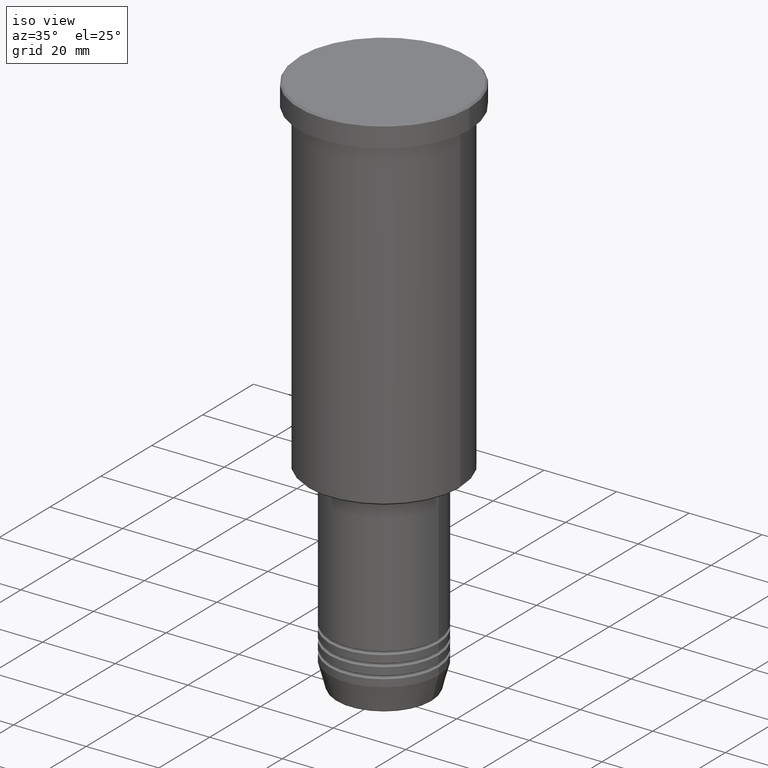
[diagram: clean part render]
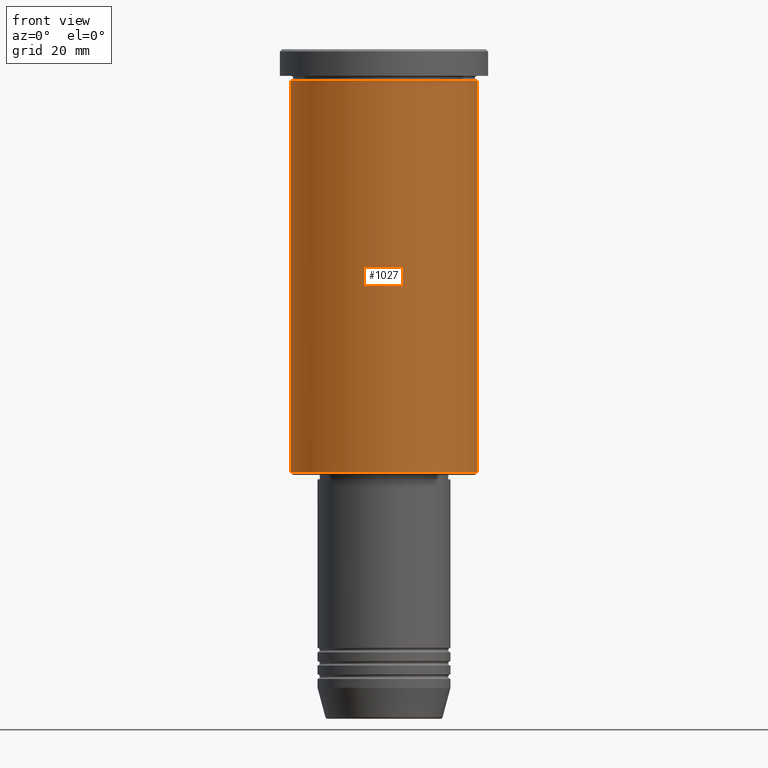
[diagram: tour spotlight — one face highlighted and labeled with its STEP entity id]
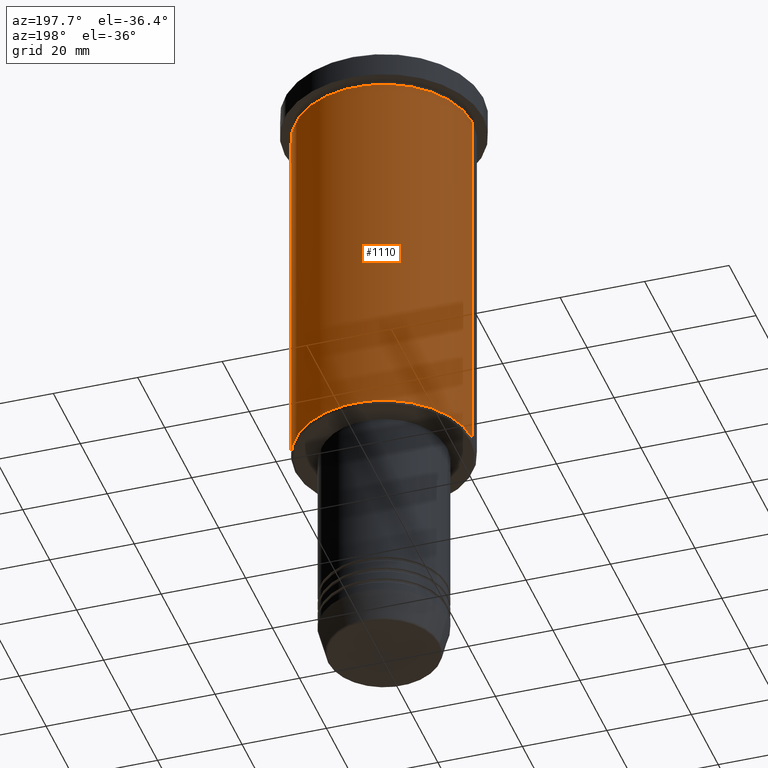
[diagram: tour spotlight — one face highlighted and labeled with its STEP entity id]
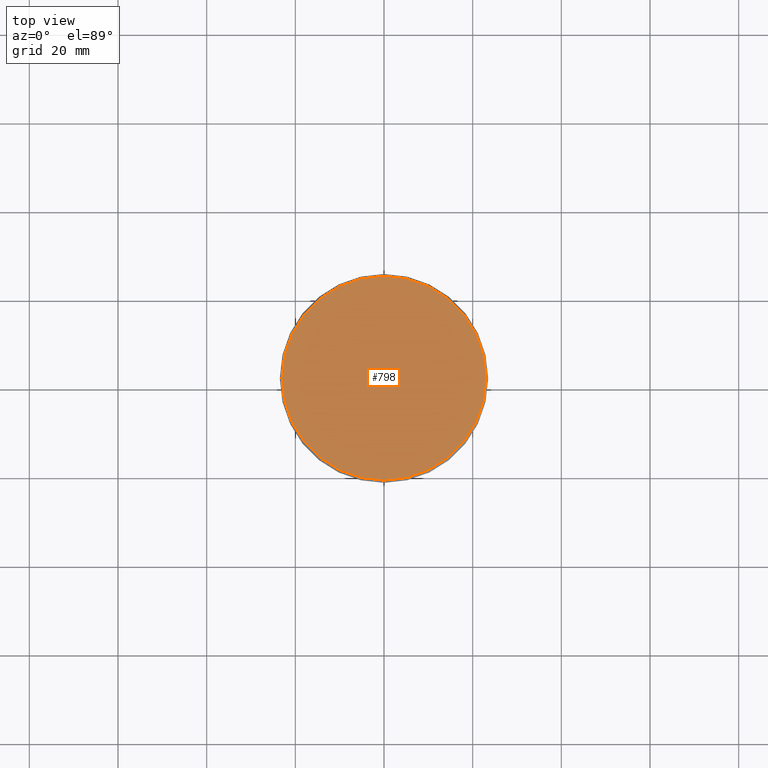
[diagram: tour spotlight — one face highlighted and labeled with its STEP entity id]
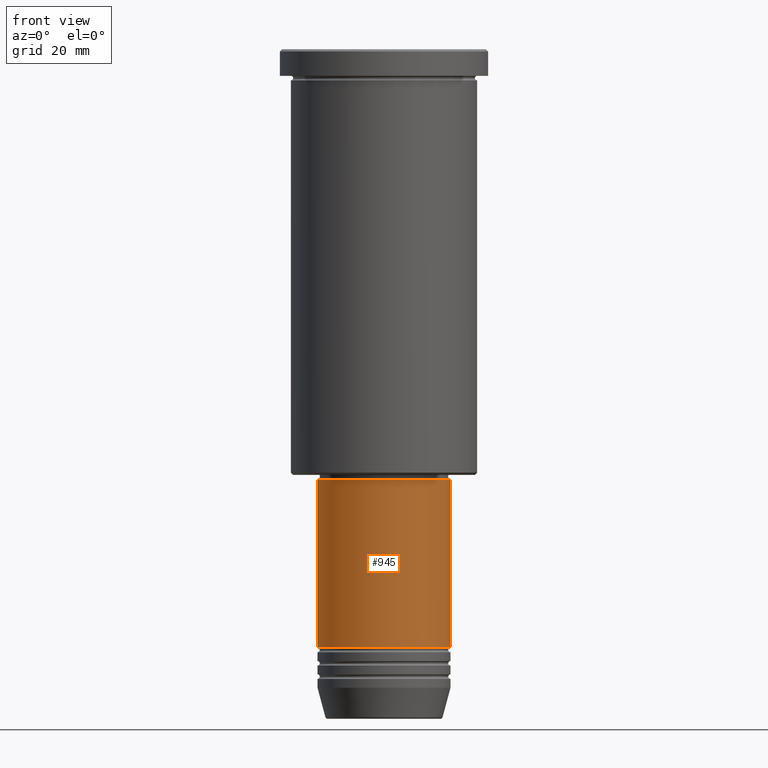
[diagram: tour spotlight — one face highlighted and labeled with its STEP entity id]
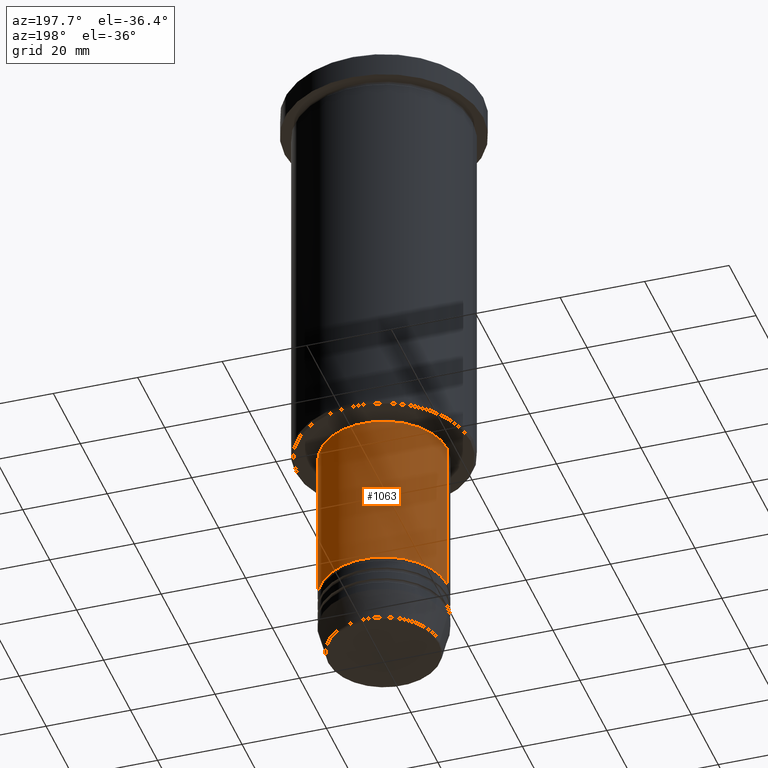
[diagram: tour spotlight — one face highlighted and labeled with its STEP entity id]
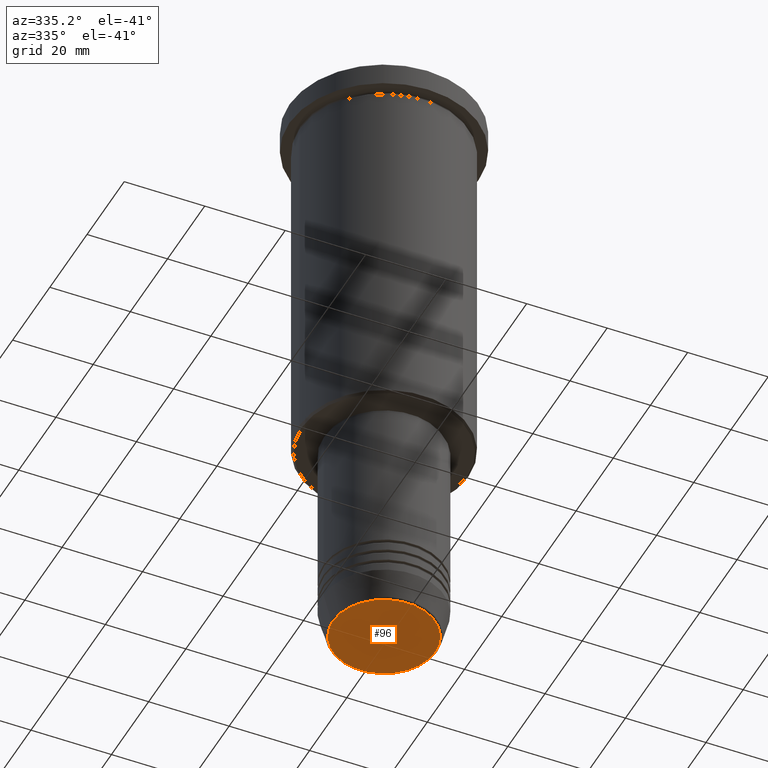
[diagram: tour spotlight — one face highlighted and labeled with its STEP entity id]
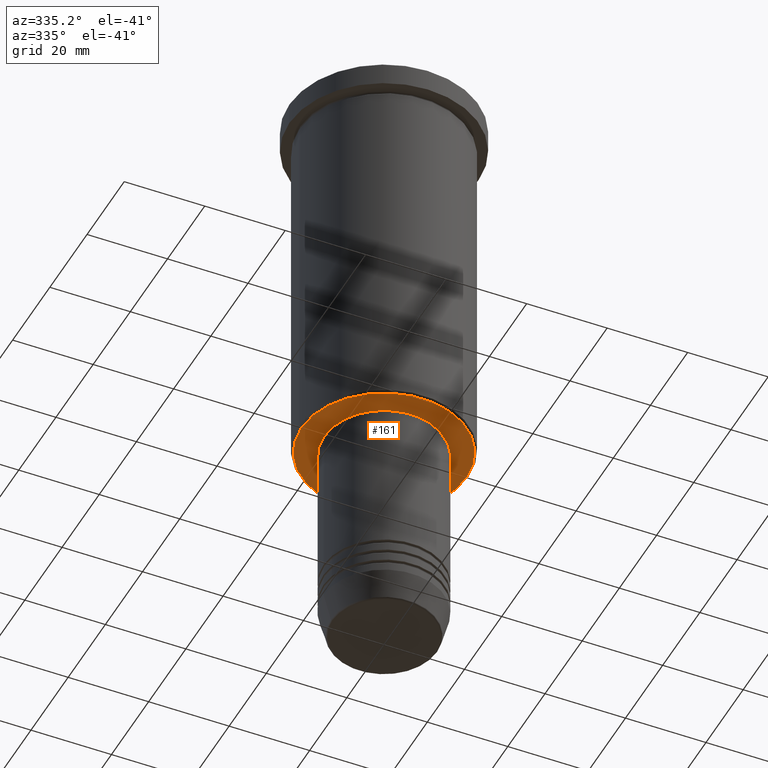
[diagram: tour spotlight — one face highlighted and labeled with its STEP entity id]
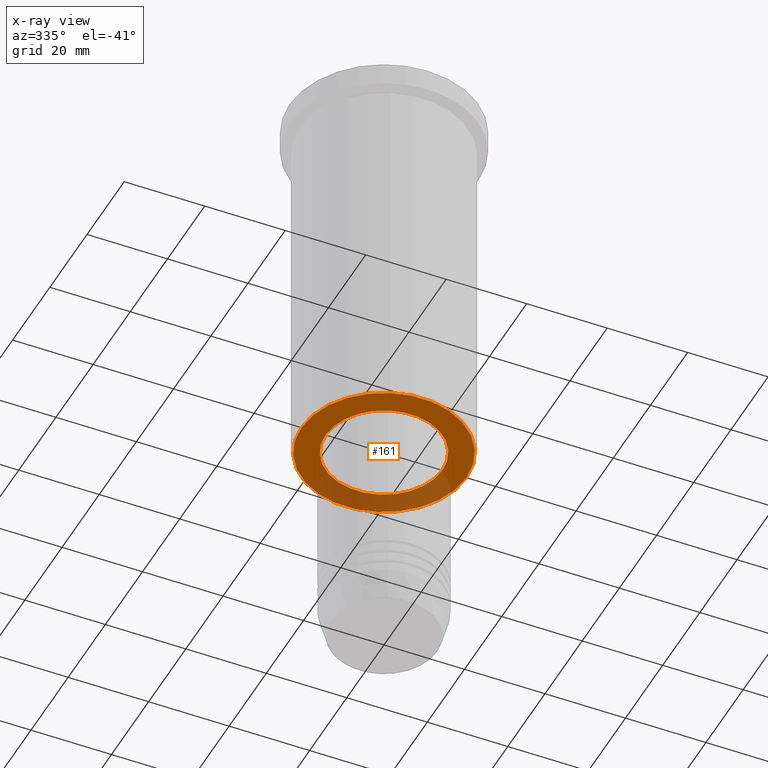
[diagram: x-ray of the same camera — body ghosted, this tour face saturated]
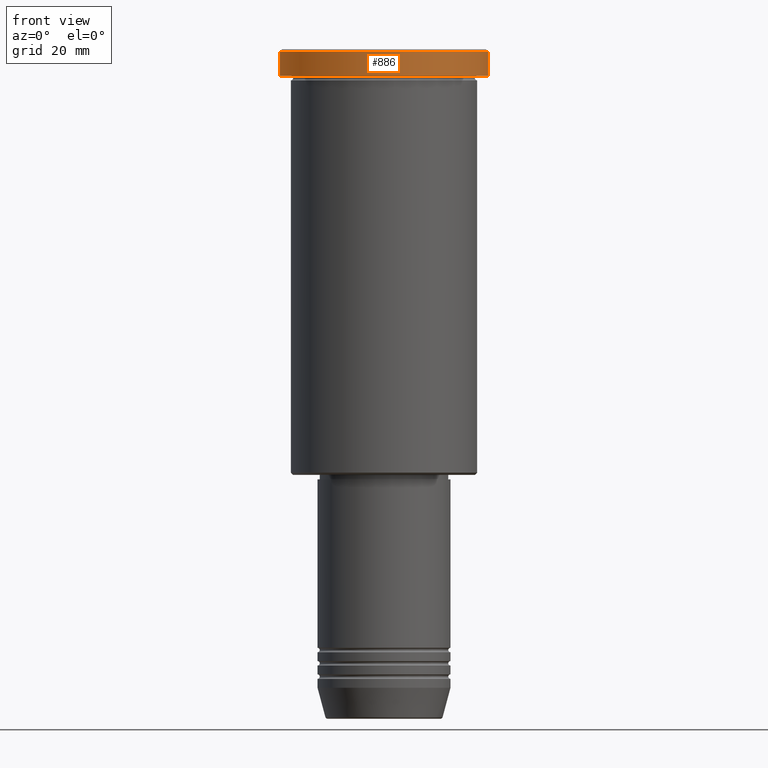
[diagram: tour spotlight — one face highlighted and labeled with its STEP entity id]
A machine part: a face-by-face anatomy tour. The part has 43 B-rep faces; the first image is the clean iso view, then the 8 largest visible faces are spotlighted one at a time (largest first), each with its STEP entity span.

Face 1 — front view, entity #1027. In plain terms, the highlighted cylindrical surface (partial cylindrical patch) has radius 21 mm, axis along (-0, -0, 1).
Definition (entity closure, byte-faithful):
#17 = VERTEX_POINT ( 'NONE', #619 ) ;
#25 = EDGE_CURVE ( 'NONE', #792, #346, #527, .T. ) ;
#35 = ORIENTED_EDGE ( 'NONE', *, *, #517, .T. ) ;
#52 = DIRECTION ( 'NONE',  ( -0.000000000000000000, -0.000000000000000000, 1.000000000000000000 ) ) ;
#54 = CARTESIAN_POINT ( 'NONE',  ( -21.00000000000000000, 2.571758278209441661E-15, -95.50000000000002842 ) ) ;
#78 = CARTESIAN_POINT ( 'NONE',  ( 21.00000000000000000, 0.000000000000000000, -95.50000000000002842 ) ) ;
#88 = VECTOR ( 'NONE', #1047, 1000.000000000000000 ) ;
#179 = CIRCLE ( 'NONE', #854, 21.00000000000000000 ) ;
#220 = DIRECTION ( 'NONE',  ( -0.000000000000000000, -0.000000000000000000, 1.000000000000000000 ) ) ;
#267 = DIRECTION ( 'NONE',  ( -1.000000000000000000, 0.000000000000000000, 0.000000000000000000 ) ) ;
#311 = CARTESIAN_POINT ( 'NONE',  ( 0.000000000000000000, 0.000000000000000000, 0.000000000000000000 ) ) ;
#322 = CARTESIAN_POINT ( 'NONE',  ( -21.00000000000000000, 2.571758278209441661E-15, 0.000000000000000000 ) ) ;
#330 = CARTESIAN_POINT ( 'NONE',  ( 0.000000000000000000, 0.000000000000000000, -6.999999999999994671 ) ) ;
#343 = AXIS2_PLACEMENT_3D ( 'NONE', #735, #358, #267 ) ;
#346 = VERTEX_POINT ( 'NONE', #78 ) ;
#358 = DIRECTION ( 'NONE',  ( -0.000000000000000000, -0.000000000000000000, 1.000000000000000000 ) ) ;
#383 = LINE ( 'NONE', #749, #88 ) ;
#462 = VERTEX_POINT ( 'NONE', #554 ) ;
#491 = FACE_OUTER_BOUND ( 'NONE', #613, .T. ) ;
#517 = EDGE_CURVE ( 'NONE', #346, #462, #383, .T. ) ;
#527 = CIRCLE ( 'NONE', #343, 21.00000000000000000 ) ;
#538 = EDGE_CURVE ( 'NONE', #792, #17, #582, .T. ) ;
#554 = CARTESIAN_POINT ( 'NONE',  ( 21.00000000000000000, 0.000000000000000000, -6.999999999999994671 ) ) ;
#570 = CYLINDRICAL_SURFACE ( 'NONE', #601, 21.00000000000000000 ) ;
#582 = LINE ( 'NONE', #322, #609 ) ;
#589 = DIRECTION ( 'NONE',  ( -0.000000000000000000, -0.000000000000000000, 1.000000000000000000 ) ) ;
#601 = AXIS2_PLACEMENT_3D ( 'NONE', #311, #220, #674 ) ;
#609 = VECTOR ( 'NONE', #589, 1000.000000000000000 ) ;
#613 = EDGE_LOOP ( 'NONE', ( #1173, #1044, #35, #887 ) ) ;
#619 = CARTESIAN_POINT ( 'NONE',  ( -21.00000000000000000, 2.571758278209441661E-15, -6.999999999999994671 ) ) ;
#674 = DIRECTION ( 'NONE',  ( 1.000000000000000000, 0.000000000000000000, 0.000000000000000000 ) ) ;
#735 = CARTESIAN_POINT ( 'NONE',  ( 0.000000000000000000, 0.000000000000000000, -95.50000000000002842 ) ) ;
#749 = CARTESIAN_POINT ( 'NONE',  ( 21.00000000000000000, 0.000000000000000000, 0.000000000000000000 ) ) ;
#792 = VERTEX_POINT ( 'NONE', #54 ) ;
#854 = AXIS2_PLACEMENT_3D ( 'NONE', #330, #52, #959 ) ;
#887 = ORIENTED_EDGE ( 'NONE', *, *, #1119, .F. ) ;
#959 = DIRECTION ( 'NONE',  ( 1.000000000000000000, 0.000000000000000000, 0.000000000000000000 ) ) ;
#1027 = ADVANCED_FACE ( 'NONE', ( #491 ), #570, .T. ) ;
#1044 = ORIENTED_EDGE ( 'NONE', *, *, #25, .T. ) ;
#1047 = DIRECTION ( 'NONE',  ( -0.000000000000000000, -0.000000000000000000, 1.000000000000000000 ) ) ;
#1119 = EDGE_CURVE ( 'NONE', #17, #462, #179, .T. ) ;
#1173 = ORIENTED_EDGE ( 'NONE', *, *, #538, .F. ) ;

Face 2 — auxiliary view, entity #1110. In plain terms, the highlighted cylindrical surface (partial cylindrical patch) has radius 21 mm, axis along (-0, -0, 1).
Definition (entity closure, byte-faithful):
#17 = VERTEX_POINT ( 'NONE', #619 ) ;
#54 = CARTESIAN_POINT ( 'NONE',  ( -21.00000000000000000, 2.571758278209441661E-15, -95.50000000000002842 ) ) ;
#78 = CARTESIAN_POINT ( 'NONE',  ( 21.00000000000000000, 0.000000000000000000, -95.50000000000002842 ) ) ;
#88 = VECTOR ( 'NONE', #1047, 1000.000000000000000 ) ;
#117 = CARTESIAN_POINT ( 'NONE',  ( 0.000000000000000000, 0.000000000000000000, -6.999999999999994671 ) ) ;
#213 = DIRECTION ( 'NONE',  ( 1.000000000000000000, 0.000000000000000000, 0.000000000000000000 ) ) ;
#228 = EDGE_LOOP ( 'NONE', ( #539, #1067, #1025, #1107 ) ) ;
#272 = CARTESIAN_POINT ( 'NONE',  ( 0.000000000000000000, 0.000000000000000000, -95.50000000000002842 ) ) ;
#301 = DIRECTION ( 'NONE',  ( -1.000000000000000000, 0.000000000000000000, 0.000000000000000000 ) ) ;
#308 = AXIS2_PLACEMENT_3D ( 'NONE', #272, #846, #301 ) ;
#322 = CARTESIAN_POINT ( 'NONE',  ( -21.00000000000000000, 2.571758278209441661E-15, 0.000000000000000000 ) ) ;
#346 = VERTEX_POINT ( 'NONE', #78 ) ;
#383 = LINE ( 'NONE', #749, #88 ) ;
#416 = EDGE_CURVE ( 'NONE', #346, #792, #784, .T. ) ;
#429 = CARTESIAN_POINT ( 'NONE',  ( 0.000000000000000000, 0.000000000000000000, 0.000000000000000000 ) ) ;
#462 = VERTEX_POINT ( 'NONE', #554 ) ;
#517 = EDGE_CURVE ( 'NONE', #346, #462, #383, .T. ) ;
#538 = EDGE_CURVE ( 'NONE', #792, #17, #582, .T. ) ;
#539 = ORIENTED_EDGE ( 'NONE', *, *, #416, .T. ) ;
#554 = CARTESIAN_POINT ( 'NONE',  ( 21.00000000000000000, 0.000000000000000000, -6.999999999999994671 ) ) ;
#582 = LINE ( 'NONE', #322, #609 ) ;
#583 = AXIS2_PLACEMENT_3D ( 'NONE', #117, #670, #213 ) ;
#589 = DIRECTION ( 'NONE',  ( -0.000000000000000000, -0.000000000000000000, 1.000000000000000000 ) ) ;
#609 = VECTOR ( 'NONE', #589, 1000.000000000000000 ) ;
#619 = CARTESIAN_POINT ( 'NONE',  ( -21.00000000000000000, 2.571758278209441661E-15, -6.999999999999994671 ) ) ;
#620 = DIRECTION ( 'NONE',  ( 1.000000000000000000, 0.000000000000000000, 0.000000000000000000 ) ) ;
#670 = DIRECTION ( 'NONE',  ( -0.000000000000000000, -0.000000000000000000, 1.000000000000000000 ) ) ;
#682 = CIRCLE ( 'NONE', #583, 21.00000000000000000 ) ;
#697 = FACE_OUTER_BOUND ( 'NONE', #228, .T. ) ;
#749 = CARTESIAN_POINT ( 'NONE',  ( 21.00000000000000000, 0.000000000000000000, 0.000000000000000000 ) ) ;
#784 = CIRCLE ( 'NONE', #308, 21.00000000000000000 ) ;
#792 = VERTEX_POINT ( 'NONE', #54 ) ;
#807 = CYLINDRICAL_SURFACE ( 'NONE', #998, 21.00000000000000000 ) ;
#846 = DIRECTION ( 'NONE',  ( -0.000000000000000000, -0.000000000000000000, 1.000000000000000000 ) ) ;
#994 = EDGE_CURVE ( 'NONE', #462, #17, #682, .T. ) ;
#998 = AXIS2_PLACEMENT_3D ( 'NONE', #429, #1072, #620 ) ;
#1025 = ORIENTED_EDGE ( 'NONE', *, *, #994, .F. ) ;
#1047 = DIRECTION ( 'NONE',  ( -0.000000000000000000, -0.000000000000000000, 1.000000000000000000 ) ) ;
#1067 = ORIENTED_EDGE ( 'NONE', *, *, #538, .T. ) ;
#1072 = DIRECTION ( 'NONE',  ( -0.000000000000000000, -0.000000000000000000, 1.000000000000000000 ) ) ;
#1107 = ORIENTED_EDGE ( 'NONE', *, *, #517, .F. ) ;
#1110 = ADVANCED_FACE ( 'NONE', ( #697 ), #807, .T. ) ;

Face 3 — top view, entity #798. In plain terms, the highlighted planar face has unit normal (0, -0, 1).
Definition (entity closure, byte-faithful):
#69 = VERTEX_POINT ( 'NONE', #840 ) ;
#141 = EDGE_CURVE ( 'NONE', #746, #69, #1155, .T. ) ;
#166 = DIRECTION ( 'NONE',  ( 1.000000000000000000, 0.000000000000000000, 0.000000000000000000 ) ) ;
#178 = DIRECTION ( 'NONE',  ( -0.000000000000000000, -0.000000000000000000, 1.000000000000000000 ) ) ;
#204 = DIRECTION ( 'NONE',  ( 1.000000000000000000, 0.000000000000000000, 0.000000000000000000 ) ) ;
#263 = AXIS2_PLACEMENT_3D ( 'NONE', #1022, #178, #204 ) ;
#344 = AXIS2_PLACEMENT_3D ( 'NONE', #757, #496, #934 ) ;
#355 = PLANE ( 'NONE',  #820 ) ;
#362 = EDGE_LOOP ( 'NONE', ( #826, #935 ) ) ;
#418 = CIRCLE ( 'NONE', #263, 23.00000000000001066 ) ;
#422 = FACE_OUTER_BOUND ( 'NONE', #362, .T. ) ;
#426 = EDGE_CURVE ( 'NONE', #69, #746, #418, .T. ) ;
#496 = DIRECTION ( 'NONE',  ( -0.000000000000000000, -0.000000000000000000, 1.000000000000000000 ) ) ;
#713 = CARTESIAN_POINT ( 'NONE',  ( 0.000000000000000000, 0.000000000000000000, 0.000000000000000000 ) ) ;
#746 = VERTEX_POINT ( 'NONE', #877 ) ;
#757 = CARTESIAN_POINT ( 'NONE',  ( 0.000000000000000000, 0.000000000000000000, 0.000000000000000000 ) ) ;
#798 = ADVANCED_FACE ( 'NONE', ( #422 ), #355, .T. ) ;
#820 = AXIS2_PLACEMENT_3D ( 'NONE', #713, #980, #166 ) ;
#826 = ORIENTED_EDGE ( 'NONE', *, *, #141, .T. ) ;
#840 = CARTESIAN_POINT ( 'NONE',  ( 23.00000000000001066, 2.847303808017596928E-15, 0.000000000000000000 ) ) ;
#877 = CARTESIAN_POINT ( 'NONE',  ( -23.00000000000001066, 0.000000000000000000, 0.000000000000000000 ) ) ;
#934 = DIRECTION ( 'NONE',  ( 1.000000000000000000, 0.000000000000000000, 0.000000000000000000 ) ) ;
#935 = ORIENTED_EDGE ( 'NONE', *, *, #426, .T. ) ;
#980 = DIRECTION ( 'NONE',  ( 0.000000000000000000, -0.000000000000000000, 1.000000000000000000 ) ) ;
#1022 = CARTESIAN_POINT ( 'NONE',  ( 0.000000000000000000, 0.000000000000000000, 0.000000000000000000 ) ) ;
#1155 = CIRCLE ( 'NONE', #344, 23.00000000000001066 ) ;

Face 4 — front view, entity #945. In plain terms, the highlighted cylindrical surface (partial cylindrical patch) has radius 15 mm, axis along (-0, -0, 1).
Definition (entity closure, byte-faithful):
#99 = AXIS2_PLACEMENT_3D ( 'NONE', #285, #1087, #1002 ) ;
#106 = CARTESIAN_POINT ( 'NONE',  ( -15.00000000000000000, 1.836970198721029589E-15, -97.00000000000000000 ) ) ;
#136 = CARTESIAN_POINT ( 'NONE',  ( 15.00000000000000000, 0.000000000000000000, -134.9999999999999716 ) ) ;
#139 = AXIS2_PLACEMENT_3D ( 'NONE', #588, #662, #774 ) ;
#142 = CARTESIAN_POINT ( 'NONE',  ( 15.00000000000000000, 0.000000000000000000, -97.00000000000000000 ) ) ;
#150 = EDGE_CURVE ( 'NONE', #615, #692, #1106, .T. ) ;
#240 = CIRCLE ( 'NONE', #139, 15.00000000000000000 ) ;
#285 = CARTESIAN_POINT ( 'NONE',  ( 0.000000000000000000, 0.000000000000000000, -134.9999999999999716 ) ) ;
#303 = CARTESIAN_POINT ( 'NONE',  ( 15.00000000000000000, 0.000000000000000000, 0.000000000000000000 ) ) ;
#413 = DIRECTION ( 'NONE',  ( -0.000000000000000000, -0.000000000000000000, 1.000000000000000000 ) ) ;
#439 = ORIENTED_EDGE ( 'NONE', *, *, #150, .T. ) ;
#449 = FACE_OUTER_BOUND ( 'NONE', #460, .T. ) ;
#460 = EDGE_LOOP ( 'NONE', ( #1124, #913, #439, #1181 ) ) ;
#520 = CARTESIAN_POINT ( 'NONE',  ( -15.00000000000000000, 1.836970198721029589E-15, 0.000000000000000000 ) ) ;
#533 = CIRCLE ( 'NONE', #99, 15.00000000000000000 ) ;
#588 = CARTESIAN_POINT ( 'NONE',  ( 0.000000000000000000, 0.000000000000000000, -97.00000000000000000 ) ) ;
#615 = VERTEX_POINT ( 'NONE', #136 ) ;
#662 = DIRECTION ( 'NONE',  ( -0.000000000000000000, -0.000000000000000000, 1.000000000000000000 ) ) ;
#666 = DIRECTION ( 'NONE',  ( -0.000000000000000000, -0.000000000000000000, 1.000000000000000000 ) ) ;
#685 = CYLINDRICAL_SURFACE ( 'NONE', #734, 15.00000000000000000 ) ;
#692 = VERTEX_POINT ( 'NONE', #142 ) ;
#696 = VERTEX_POINT ( 'NONE', #881 ) ;
#716 = EDGE_CURVE ( 'NONE', #696, #917, #720, .T. ) ;
#720 = LINE ( 'NONE', #520, #1083 ) ;
#734 = AXIS2_PLACEMENT_3D ( 'NONE', #942, #413, #853 ) ;
#743 = VECTOR ( 'NONE', #666, 1000.000000000000000 ) ;
#774 = DIRECTION ( 'NONE',  ( 1.000000000000000000, 0.000000000000000000, 0.000000000000000000 ) ) ;
#853 = DIRECTION ( 'NONE',  ( 1.000000000000000000, 0.000000000000000000, 0.000000000000000000 ) ) ;
#878 = EDGE_CURVE ( 'NONE', #696, #615, #533, .T. ) ;
#881 = CARTESIAN_POINT ( 'NONE',  ( -15.00000000000000000, 1.836970198721029589E-15, -134.9999999999999716 ) ) ;
#913 = ORIENTED_EDGE ( 'NONE', *, *, #878, .T. ) ;
#917 = VERTEX_POINT ( 'NONE', #106 ) ;
#942 = CARTESIAN_POINT ( 'NONE',  ( 0.000000000000000000, 0.000000000000000000, 0.000000000000000000 ) ) ;
#945 = ADVANCED_FACE ( 'NONE', ( #449 ), #685, .T. ) ;
#1002 = DIRECTION ( 'NONE',  ( 1.000000000000000000, 0.000000000000000000, 0.000000000000000000 ) ) ;
#1069 = EDGE_CURVE ( 'NONE', #917, #692, #240, .T. ) ;
#1083 = VECTOR ( 'NONE', #1144, 1000.000000000000000 ) ;
#1087 = DIRECTION ( 'NONE',  ( -0.000000000000000000, -0.000000000000000000, 1.000000000000000000 ) ) ;
#1106 = LINE ( 'NONE', #303, #743 ) ;
#1124 = ORIENTED_EDGE ( 'NONE', *, *, #716, .F. ) ;
#1144 = DIRECTION ( 'NONE',  ( -0.000000000000000000, -0.000000000000000000, 1.000000000000000000 ) ) ;
#1181 = ORIENTED_EDGE ( 'NONE', *, *, #1069, .F. ) ;

Face 5 — auxiliary view, entity #1063. In plain terms, the highlighted cylindrical surface (partial cylindrical patch) has radius 15 mm, axis along (-0, -0, 1).
Definition (entity closure, byte-faithful):
#16 = DIRECTION ( 'NONE',  ( 1.000000000000000000, 0.000000000000000000, 0.000000000000000000 ) ) ;
#23 = CYLINDRICAL_SURFACE ( 'NONE', #565, 15.00000000000000000 ) ;
#30 = DIRECTION ( 'NONE',  ( 1.000000000000000000, 0.000000000000000000, 0.000000000000000000 ) ) ;
#71 = AXIS2_PLACEMENT_3D ( 'NONE', #577, #132, #30 ) ;
#106 = CARTESIAN_POINT ( 'NONE',  ( -15.00000000000000000, 1.836970198721029589E-15, -97.00000000000000000 ) ) ;
#113 = EDGE_CURVE ( 'NONE', #615, #696, #205, .T. ) ;
#132 = DIRECTION ( 'NONE',  ( -0.000000000000000000, -0.000000000000000000, 1.000000000000000000 ) ) ;
#136 = CARTESIAN_POINT ( 'NONE',  ( 15.00000000000000000, 0.000000000000000000, -134.9999999999999716 ) ) ;
#142 = CARTESIAN_POINT ( 'NONE',  ( 15.00000000000000000, 0.000000000000000000, -97.00000000000000000 ) ) ;
#150 = EDGE_CURVE ( 'NONE', #615, #692, #1106, .T. ) ;
#202 = EDGE_LOOP ( 'NONE', ( #569, #525, #977, #1014 ) ) ;
#205 = CIRCLE ( 'NONE', #453, 15.00000000000000000 ) ;
#303 = CARTESIAN_POINT ( 'NONE',  ( 15.00000000000000000, 0.000000000000000000, 0.000000000000000000 ) ) ;
#309 = CARTESIAN_POINT ( 'NONE',  ( 0.000000000000000000, 0.000000000000000000, -134.9999999999999716 ) ) ;
#316 = CARTESIAN_POINT ( 'NONE',  ( 0.000000000000000000, 0.000000000000000000, 0.000000000000000000 ) ) ;
#391 = DIRECTION ( 'NONE',  ( -0.000000000000000000, -0.000000000000000000, 1.000000000000000000 ) ) ;
#406 = DIRECTION ( 'NONE',  ( -0.000000000000000000, -0.000000000000000000, 1.000000000000000000 ) ) ;
#453 = AXIS2_PLACEMENT_3D ( 'NONE', #309, #406, #16 ) ;
#494 = CIRCLE ( 'NONE', #71, 15.00000000000000000 ) ;
#520 = CARTESIAN_POINT ( 'NONE',  ( -15.00000000000000000, 1.836970198721029589E-15, 0.000000000000000000 ) ) ;
#525 = ORIENTED_EDGE ( 'NONE', *, *, #716, .T. ) ;
#565 = AXIS2_PLACEMENT_3D ( 'NONE', #316, #391, #1037 ) ;
#569 = ORIENTED_EDGE ( 'NONE', *, *, #113, .T. ) ;
#577 = CARTESIAN_POINT ( 'NONE',  ( 0.000000000000000000, 0.000000000000000000, -97.00000000000000000 ) ) ;
#615 = VERTEX_POINT ( 'NONE', #136 ) ;
#659 = EDGE_CURVE ( 'NONE', #692, #917, #494, .T. ) ;
#666 = DIRECTION ( 'NONE',  ( -0.000000000000000000, -0.000000000000000000, 1.000000000000000000 ) ) ;
#692 = VERTEX_POINT ( 'NONE', #142 ) ;
#696 = VERTEX_POINT ( 'NONE', #881 ) ;
#716 = EDGE_CURVE ( 'NONE', #696, #917, #720, .T. ) ;
#720 = LINE ( 'NONE', #520, #1083 ) ;
#743 = VECTOR ( 'NONE', #666, 1000.000000000000000 ) ;
#881 = CARTESIAN_POINT ( 'NONE',  ( -15.00000000000000000, 1.836970198721029589E-15, -134.9999999999999716 ) ) ;
#917 = VERTEX_POINT ( 'NONE', #106 ) ;
#977 = ORIENTED_EDGE ( 'NONE', *, *, #659, .F. ) ;
#1014 = ORIENTED_EDGE ( 'NONE', *, *, #150, .F. ) ;
#1031 = FACE_OUTER_BOUND ( 'NONE', #202, .T. ) ;
#1037 = DIRECTION ( 'NONE',  ( 1.000000000000000000, 0.000000000000000000, 0.000000000000000000 ) ) ;
#1063 = ADVANCED_FACE ( 'NONE', ( #1031 ), #23, .T. ) ;
#1083 = VECTOR ( 'NONE', #1144, 1000.000000000000000 ) ;
#1106 = LINE ( 'NONE', #303, #743 ) ;
#1144 = DIRECTION ( 'NONE',  ( -0.000000000000000000, -0.000000000000000000, 1.000000000000000000 ) ) ;

Face 6 — auxiliary view, entity #96. In plain terms, the highlighted planar face has unit normal (0, -0, 1).
Definition (entity closure, byte-faithful):
#31 = AXIS2_PLACEMENT_3D ( 'NONE', #419, #1053, #423 ) ;
#96 = ADVANCED_FACE ( 'NONE', ( #121 ), #1111, .F. ) ;
#121 = FACE_OUTER_BOUND ( 'NONE', #134, .T. ) ;
#134 = EDGE_LOOP ( 'NONE', ( #208, #958 ) ) ;
#208 = ORIENTED_EDGE ( 'NONE', *, *, #365, .T. ) ;
#218 = AXIS2_PLACEMENT_3D ( 'NONE', #1056, #509, #604 ) ;
#365 = EDGE_CURVE ( 'NONE', #456, #806, #839, .T. ) ;
#385 = DIRECTION ( 'NONE',  ( 0.000000000000000000, -0.000000000000000000, 1.000000000000000000 ) ) ;
#392 = CIRCLE ( 'NONE', #218, 12.74069215899265828 ) ;
#419 = CARTESIAN_POINT ( 'NONE',  ( 0.000000000000000000, 0.000000000000000000, -151.0000000000000284 ) ) ;
#423 = DIRECTION ( 'NONE',  ( 1.000000000000000000, 0.000000000000000000, 0.000000000000000000 ) ) ;
#456 = VERTEX_POINT ( 'NONE', #636 ) ;
#478 = CARTESIAN_POINT ( 'NONE',  ( 0.000000000000000000, 0.000000000000000000, -151.0000000000000284 ) ) ;
#489 = DIRECTION ( 'NONE',  ( 1.000000000000000000, 0.000000000000000000, 0.000000000000000000 ) ) ;
#509 = DIRECTION ( 'NONE',  ( 0.000000000000000000, 0.000000000000000000, -1.000000000000000000 ) ) ;
#552 = CARTESIAN_POINT ( 'NONE',  ( -12.74069215899265828, 1.589857736427681035E-15, -151.0000000000000284 ) ) ;
#604 = DIRECTION ( 'NONE',  ( 1.000000000000000000, 0.000000000000000000, 0.000000000000000000 ) ) ;
#636 = CARTESIAN_POINT ( 'NONE',  ( 12.74069215899265828, 0.000000000000000000, -151.0000000000000284 ) ) ;
#782 = AXIS2_PLACEMENT_3D ( 'NONE', #478, #385, #489 ) ;
#806 = VERTEX_POINT ( 'NONE', #552 ) ;
#839 = CIRCLE ( 'NONE', #31, 12.74069215899265828 ) ;
#958 = ORIENTED_EDGE ( 'NONE', *, *, #1170, .T. ) ;
#1053 = DIRECTION ( 'NONE',  ( 0.000000000000000000, 0.000000000000000000, -1.000000000000000000 ) ) ;
#1056 = CARTESIAN_POINT ( 'NONE',  ( 0.000000000000000000, 0.000000000000000000, -151.0000000000000284 ) ) ;
#1111 = PLANE ( 'NONE',  #782 ) ;
#1170 = EDGE_CURVE ( 'NONE', #806, #456, #392, .T. ) ;

Face 7 — auxiliary view, entity #161. An x-ray twin of the same camera follows (body ghosted, this face saturated) — the face is partly hidden behind the body. In plain terms, the highlighted planar face has unit normal (0, 0, -1).
Definition (entity closure, byte-faithful):
#6 = DIRECTION ( 'NONE',  ( 0.000000000000000000, 0.000000000000000000, -1.000000000000000000 ) ) ;
#26 = FACE_BOUND ( 'NONE', #81, .T. ) ;
#32 = CARTESIAN_POINT ( 'NONE',  ( 0.000000000000000000, 21.00000000000000000, -96.00000000000000000 ) ) ;
#47 = CARTESIAN_POINT ( 'NONE',  ( 14.49999999999999822, 0.000000000000000000, -96.00000000000000000 ) ) ;
#74 = CARTESIAN_POINT ( 'NONE',  ( 0.000000000000000000, 0.000000000000000000, -96.00000000000000000 ) ) ;
#81 = EDGE_LOOP ( 'NONE', ( #989, #708 ) ) ;
#89 = DIRECTION ( 'NONE',  ( -1.000000000000000000, 0.000000000000000000, 0.000000000000000000 ) ) ;
#129 = CIRCLE ( 'NONE', #1065, 20.50000000000003197 ) ;
#161 = ADVANCED_FACE ( 'NONE', ( #586, #26 ), #394, .T. ) ;
#186 = CARTESIAN_POINT ( 'NONE',  ( 0.000000000000000000, 0.000000000000000000, -96.00000000000000000 ) ) ;
#199 = CIRCLE ( 'NONE', #943, 14.49999999999999822 ) ;
#252 = CARTESIAN_POINT ( 'NONE',  ( 0.000000000000000000, 0.000000000000000000, -96.00000000000000000 ) ) ;
#277 = ORIENTED_EDGE ( 'NONE', *, *, #488, .T. ) ;
#341 = DIRECTION ( 'NONE',  ( -0.000000000000000000, -0.000000000000000000, 1.000000000000000000 ) ) ;
#350 = DIRECTION ( 'NONE',  ( 0.000000000000000000, 0.000000000000000000, -1.000000000000000000 ) ) ;
#374 = DIRECTION ( 'NONE',  ( 1.000000000000000000, 0.000000000000000000, 0.000000000000000000 ) ) ;
#394 = PLANE ( 'NONE',  #1043 ) ;
#424 = VERTEX_POINT ( 'NONE', #664 ) ;
#487 = CIRCLE ( 'NONE', #717, 20.50000000000003197 ) ;
#488 = EDGE_CURVE ( 'NONE', #634, #424, #129, .T. ) ;
#508 = EDGE_LOOP ( 'NONE', ( #277, #574 ) ) ;
#519 = VERTEX_POINT ( 'NONE', #47 ) ;
#564 = DIRECTION ( 'NONE',  ( -0.000000000000000000, -0.000000000000000000, 1.000000000000000000 ) ) ;
#574 = ORIENTED_EDGE ( 'NONE', *, *, #1084, .T. ) ;
#586 = FACE_OUTER_BOUND ( 'NONE', #508, .T. ) ;
#634 = VERTEX_POINT ( 'NONE', #1140 ) ;
#650 = AXIS2_PLACEMENT_3D ( 'NONE', #844, #564, #374 ) ;
#664 = CARTESIAN_POINT ( 'NONE',  ( -20.50000000000003197, 2.541142108230759846E-15, -96.00000000000000000 ) ) ;
#708 = ORIENTED_EDGE ( 'NONE', *, *, #1154, .T. ) ;
#717 = AXIS2_PLACEMENT_3D ( 'NONE', #74, #350, #964 ) ;
#761 = DIRECTION ( 'NONE',  ( -1.000000000000000000, 0.000000000000000000, -0.000000000000000000 ) ) ;
#767 = DIRECTION ( 'NONE',  ( 0.000000000000000000, 0.000000000000000000, -1.000000000000000000 ) ) ;
#779 = VERTEX_POINT ( 'NONE', #1167 ) ;
#844 = CARTESIAN_POINT ( 'NONE',  ( 0.000000000000000000, 0.000000000000000000, -96.00000000000000000 ) ) ;
#845 = EDGE_CURVE ( 'NONE', #519, #779, #1137, .T. ) ;
#888 = DIRECTION ( 'NONE',  ( 1.000000000000000000, 0.000000000000000000, 0.000000000000000000 ) ) ;
#943 = AXIS2_PLACEMENT_3D ( 'NONE', #252, #341, #888 ) ;
#964 = DIRECTION ( 'NONE',  ( -1.000000000000000000, 0.000000000000000000, 0.000000000000000000 ) ) ;
#989 = ORIENTED_EDGE ( 'NONE', *, *, #845, .T. ) ;
#1043 = AXIS2_PLACEMENT_3D ( 'NONE', #32, #767, #761 ) ;
#1065 = AXIS2_PLACEMENT_3D ( 'NONE', #186, #6, #89 ) ;
#1084 = EDGE_CURVE ( 'NONE', #424, #634, #487, .T. ) ;
#1137 = CIRCLE ( 'NONE', #650, 14.49999999999999822 ) ;
#1140 = CARTESIAN_POINT ( 'NONE',  ( 20.50000000000003197, 0.000000000000000000, -96.00000000000000000 ) ) ;
#1154 = EDGE_CURVE ( 'NONE', #779, #519, #199, .T. ) ;
#1167 = CARTESIAN_POINT ( 'NONE',  ( -14.49999999999999822, 1.775737858763662015E-15, -96.00000000000000000 ) ) ;

Face 8 — front view, entity #886. In plain terms, the highlighted cylindrical surface (partial cylindrical patch) has radius 23.5 mm, axis along (-0, -0, 1).
Definition (entity closure, byte-faithful):
#10 = CYLINDRICAL_SURFACE ( 'NONE', #658, 23.50000000000000000 ) ;
#43 = DIRECTION ( 'NONE',  ( 0.000000000000000000, 0.000000000000000000, -1.000000000000000000 ) ) ;
#111 = ORIENTED_EDGE ( 'NONE', *, *, #317, .T. ) ;
#143 = CARTESIAN_POINT ( 'NONE',  ( 23.50000000000000000, 0.000000000000000000, -0.5000000000000143219 ) ) ;
#147 = CIRCLE ( 'NONE', #985, 23.50000000000000000 ) ;
#197 = DIRECTION ( 'NONE',  ( -0.000000000000000000, -0.000000000000000000, 1.000000000000000000 ) ) ;
#224 = CIRCLE ( 'NONE', #549, 23.50000000000000000 ) ;
#253 = DIRECTION ( 'NONE',  ( -0.000000000000000000, -0.000000000000000000, 1.000000000000000000 ) ) ;
#265 = CARTESIAN_POINT ( 'NONE',  ( 0.000000000000000000, 0.000000000000000000, -5.999999999999994671 ) ) ;
#271 = CARTESIAN_POINT ( 'NONE',  ( 0.000000000000000000, 0.000000000000000000, 0.000000000000000000 ) ) ;
#300 = DIRECTION ( 'NONE',  ( -0.000000000000000000, -0.000000000000000000, 1.000000000000000000 ) ) ;
#315 = VERTEX_POINT ( 'NONE', #143 ) ;
#317 = EDGE_CURVE ( 'NONE', #315, #948, #224, .T. ) ;
#337 = CARTESIAN_POINT ( 'NONE',  ( -23.50000000000000000, 2.877919977996280320E-15, -5.999999999999994671 ) ) ;
#369 = DIRECTION ( 'NONE',  ( 1.000000000000000000, 0.000000000000000000, 0.000000000000000000 ) ) ;
#387 = LINE ( 'NONE', #1108, #755 ) ;
#411 = DIRECTION ( 'NONE',  ( 1.000000000000000000, 0.000000000000000000, 0.000000000000000000 ) ) ;
#412 = ORIENTED_EDGE ( 'NONE', *, *, #1098, .F. ) ;
#442 = DIRECTION ( 'NONE',  ( 1.000000000000000000, 0.000000000000000000, 0.000000000000000000 ) ) ;
#549 = AXIS2_PLACEMENT_3D ( 'NONE', #1128, #43, #411 ) ;
#658 = AXIS2_PLACEMENT_3D ( 'NONE', #271, #197, #369 ) ;
#706 = EDGE_LOOP ( 'NONE', ( #412, #1071, #889, #111 ) ) ;
#719 = VERTEX_POINT ( 'NONE', #337 ) ;
#732 = FACE_OUTER_BOUND ( 'NONE', #706, .T. ) ;
#752 = VERTEX_POINT ( 'NONE', #809 ) ;
#755 = VECTOR ( 'NONE', #300, 1000.000000000000000 ) ;
#756 = EDGE_CURVE ( 'NONE', #719, #752, #147, .T. ) ;
#764 = CARTESIAN_POINT ( 'NONE',  ( -23.50000000000000000, 2.877919977996280320E-15, -0.5000000000000143219 ) ) ;
#777 = VECTOR ( 'NONE', #797, 1000.000000000000000 ) ;
#797 = DIRECTION ( 'NONE',  ( -0.000000000000000000, -0.000000000000000000, 1.000000000000000000 ) ) ;
#809 = CARTESIAN_POINT ( 'NONE',  ( 23.50000000000000000, 0.000000000000000000, -5.999999999999994671 ) ) ;
#886 = ADVANCED_FACE ( 'NONE', ( #732 ), #10, .T. ) ;
#889 = ORIENTED_EDGE ( 'NONE', *, *, #923, .T. ) ;
#923 = EDGE_CURVE ( 'NONE', #752, #315, #387, .T. ) ;
#948 = VERTEX_POINT ( 'NONE', #764 ) ;
#978 = LINE ( 'NONE', #1143, #777 ) ;
#985 = AXIS2_PLACEMENT_3D ( 'NONE', #265, #253, #442 ) ;
#1071 = ORIENTED_EDGE ( 'NONE', *, *, #756, .T. ) ;
#1098 = EDGE_CURVE ( 'NONE', #719, #948, #978, .T. ) ;
#1108 = CARTESIAN_POINT ( 'NONE',  ( 23.50000000000000000, 0.000000000000000000, 0.000000000000000000 ) ) ;
#1128 = CARTESIAN_POINT ( 'NONE',  ( 0.000000000000000000, 0.000000000000000000, -0.5000000000000143219 ) ) ;
#1143 = CARTESIAN_POINT ( 'NONE',  ( -23.50000000000000000, 2.877919977996280320E-15, 0.000000000000000000 ) ) ;